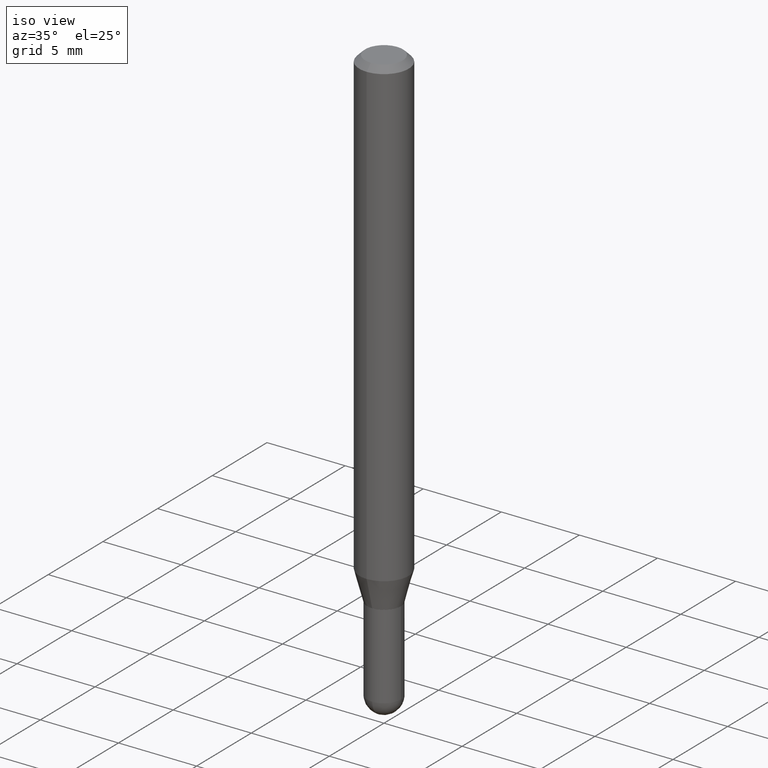
[diagram: clean part render]
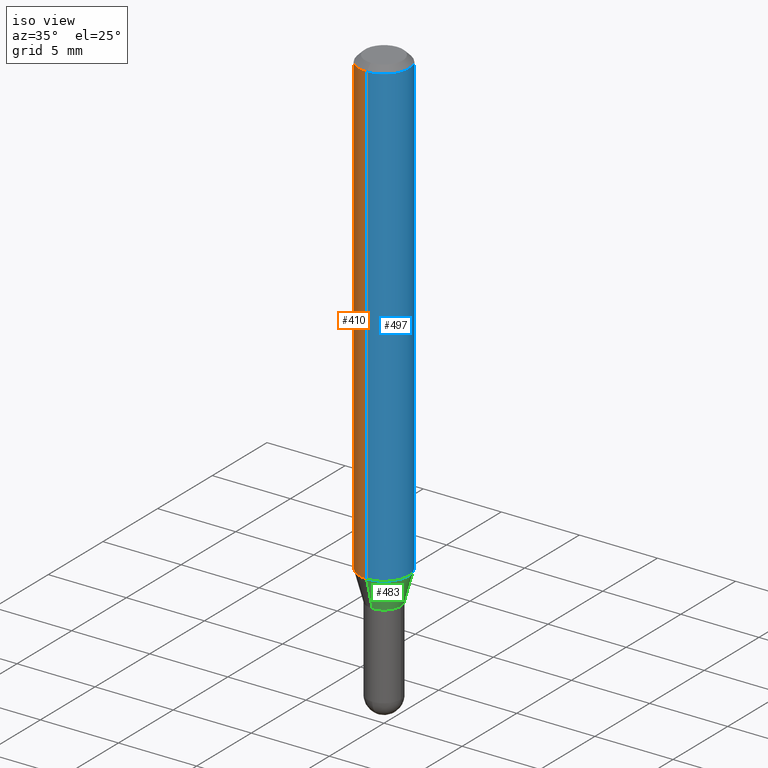
[diagram: same view with three faces highlighted in distinct colors, each labeled with its STEP entity id]
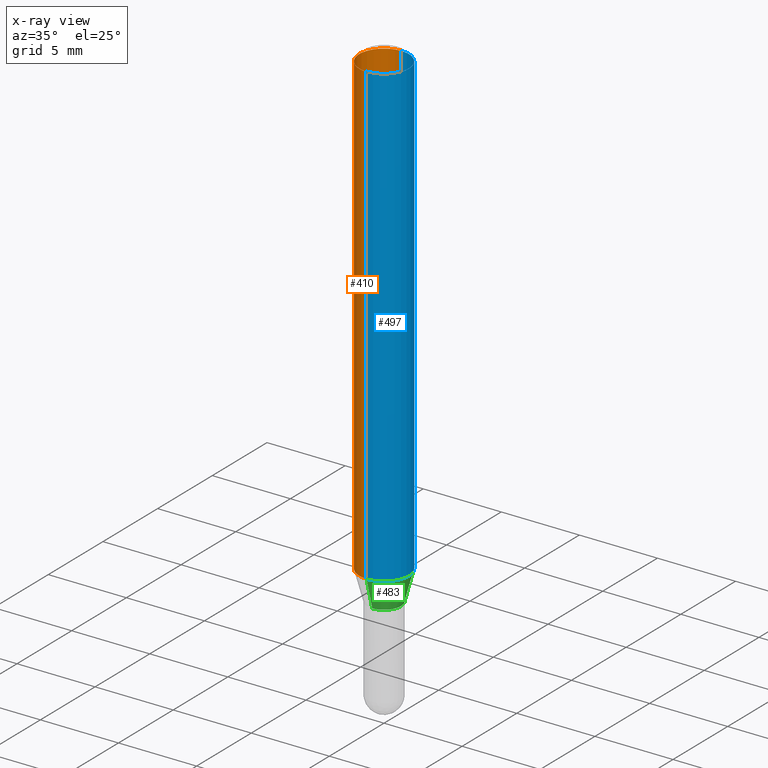
[diagram: x-ray of the same camera — body ghosted, the three highlighted faces saturated]
A machine part, iso view with three faces highlighted in distinct colors.
The next image is the same camera in x-ray (body ghosted, the three faces saturated) — at least one of them is partly hidden behind the body in this view.
Their STEP definitions:

[orange] entity #410 — the highlighted cylindrical surface (edge-blend (fillet) strip) has radius 1.5875 mm, axis along (-0, 0, 1).
#1 = ORIENTED_EDGE ( 'NONE', *, *, #155, .T. ) ;
#10 = CARTESIAN_POINT ( 'NONE',  ( 2.862182199487982773E-29, -4.086135022407415615E-15, -1.170358983848625023 ) ) ;
#26 = ORIENTED_EDGE ( 'NONE', *, *, #341, .T. ) ;
#89 = CARTESIAN_POINT ( 'NONE',  ( 4.440892098500625669E-16, 0.06250000000000000000, -2.182094916387593737E-16 ) ) ;
#90 = ORIENTED_EDGE ( 'NONE', *, *, #475, .F. ) ;
#94 = CIRCLE ( 'NONE', #489, 0.06250000000000000000 ) ;
#97 = DIRECTION ( 'NONE',  ( -2.445559216434552627E-29, 3.491351866220149979E-15, 1.000000000000000000 ) ) ;
#105 = DIRECTION ( 'NONE',  ( -6.982962677686265922E-15, -1.000000000000000000, 3.483106191921935554E-15 ) ) ;
#136 = DIRECTION ( 'NONE',  ( -2.445559216434552627E-29, 3.491351866220149979E-15, 1.000000000000000000 ) ) ;
#141 = FACE_OUTER_BOUND ( 'NONE', #195, .T. ) ;
#142 = CARTESIAN_POINT ( 'NONE',  ( -4.364351673553628267E-16, -0.06250000000000405231, -1.170358983848624801 ) ) ;
#147 = CARTESIAN_POINT ( 'NONE',  ( -4.364351673553916201E-16, -0.06250000000000000000, 2.182094916387593737E-16 ) ) ;
#153 = VERTEX_POINT ( 'NONE', #353 ) ;
#155 = EDGE_CURVE ( 'NONE', #153, #273, #94, .T. ) ;
#167 = CARTESIAN_POINT ( 'NONE',  ( 0.000000000000000000, 0.000000000000000000, 0.000000000000000000 ) ) ;
#181 = LINE ( 'NONE', #147, #277 ) ;
#195 = EDGE_LOOP ( 'NONE', ( #90, #1, #26, #406 ) ) ;
#207 = CIRCLE ( 'NONE', #263, 0.06250000000000000000 ) ;
#263 = AXIS2_PLACEMENT_3D ( 'NONE', #301, #343, #105 ) ;
#273 = VERTEX_POINT ( 'NONE', #142 ) ;
#277 = VECTOR ( 'NONE', #376, 39.37007874015748143 ) ;
#281 = VERTEX_POINT ( 'NONE', #309 ) ;
#301 = CARTESIAN_POINT ( 'NONE',  ( 3.668338824651831148E-31, -5.237027799330228519E-17, -0.01500000000000000812 ) ) ;
#304 = VECTOR ( 'NONE', #97, 39.37007874015748143 ) ;
#309 = CARTESIAN_POINT ( 'NONE',  ( -4.364351673553912750E-16, -0.06250000000000005551, -0.01499999999999979128 ) ) ;
#312 = VERTEX_POINT ( 'NONE', #313 ) ;
#313 = CARTESIAN_POINT ( 'NONE',  ( 4.440892098500914096E-16, 0.06249999999999995143, -0.01500000000000022669 ) ) ;
#341 = EDGE_CURVE ( 'NONE', #273, #281, #181, .T. ) ;
#343 = DIRECTION ( 'NONE',  ( -2.445559216434552627E-29, 3.491351866220149979E-15, 1.000000000000000000 ) ) ;
#346 = EDGE_CURVE ( 'NONE', #312, #281, #207, .T. ) ;
#353 = CARTESIAN_POINT ( 'NONE',  ( 4.440892098500914096E-16, 0.06249999999999594075, -1.170358983848625467 ) ) ;
#364 = DIRECTION ( 'NONE',  ( -6.982962677686265922E-15, -1.000000000000000000, 3.491351866220149979E-15 ) ) ;
#376 = DIRECTION ( 'NONE',  ( -2.445559216434552627E-29, 3.491351866220149979E-15, 1.000000000000000000 ) ) ;
#406 = ORIENTED_EDGE ( 'NONE', *, *, #346, .F. ) ;
#410 = ADVANCED_FACE ( 'NONE', ( #141 ), #480, .T. ) ;
#427 = AXIS2_PLACEMENT_3D ( 'NONE', #167, #136, #364 ) ;
#435 = DIRECTION ( 'NONE',  ( -6.982962677686265922E-15, -1.000000000000000000, 4.370956789862821150E-15 ) ) ;
#438 = LINE ( 'NONE', #89, #304 ) ;
#468 = DIRECTION ( 'NONE',  ( -2.445559216434552627E-29, 3.491351866220149979E-15, 1.000000000000000000 ) ) ;
#475 = EDGE_CURVE ( 'NONE', #153, #312, #438, .T. ) ;
#480 = CYLINDRICAL_SURFACE ( 'NONE', #427, 0.06250000000000000000 ) ;
#489 = AXIS2_PLACEMENT_3D ( 'NONE', #10, #468, #435 ) ;

[blue] entity #497 — the highlighted cylindrical surface (edge-blend (fillet) strip) has radius 1.5875 mm, axis along (-0, 0, 1).
#62 = DIRECTION ( 'NONE',  ( -2.445559216434552627E-29, 3.491351866220149979E-15, 1.000000000000000000 ) ) ;
#83 = ORIENTED_EDGE ( 'NONE', *, *, #341, .F. ) ;
#89 = CARTESIAN_POINT ( 'NONE',  ( 4.440892098500625669E-16, 0.06250000000000000000, -2.182094916387593737E-16 ) ) ;
#97 = DIRECTION ( 'NONE',  ( -2.445559216434552627E-29, 3.491351866220149979E-15, 1.000000000000000000 ) ) ;
#98 = CYLINDRICAL_SURFACE ( 'NONE', #362, 0.06250000000000000000 ) ;
#102 = AXIS2_PLACEMENT_3D ( 'NONE', #397, #62, #465 ) ;
#142 = CARTESIAN_POINT ( 'NONE',  ( -4.364351673553628267E-16, -0.06250000000000405231, -1.170358983848624801 ) ) ;
#147 = CARTESIAN_POINT ( 'NONE',  ( -4.364351673553916201E-16, -0.06250000000000000000, 2.182094916387593737E-16 ) ) ;
#149 = DIRECTION ( 'NONE',  ( -2.445559216434552627E-29, 3.491351866220149979E-15, 1.000000000000000000 ) ) ;
#153 = VERTEX_POINT ( 'NONE', #353 ) ;
#181 = LINE ( 'NONE', #147, #277 ) ;
#199 = ORIENTED_EDGE ( 'NONE', *, *, #302, .F. ) ;
#216 = EDGE_CURVE ( 'NONE', #273, #153, #373, .T. ) ;
#254 = CIRCLE ( 'NONE', #102, 0.06250000000000000000 ) ;
#269 = AXIS2_PLACEMENT_3D ( 'NONE', #384, #342, #460 ) ;
#273 = VERTEX_POINT ( 'NONE', #142 ) ;
#277 = VECTOR ( 'NONE', #376, 39.37007874015748143 ) ;
#281 = VERTEX_POINT ( 'NONE', #309 ) ;
#292 = FACE_OUTER_BOUND ( 'NONE', #431, .T. ) ;
#302 = EDGE_CURVE ( 'NONE', #281, #312, #254, .T. ) ;
#304 = VECTOR ( 'NONE', #97, 39.37007874015748143 ) ;
#309 = CARTESIAN_POINT ( 'NONE',  ( -4.364351673553912750E-16, -0.06250000000000005551, -0.01499999999999979128 ) ) ;
#312 = VERTEX_POINT ( 'NONE', #313 ) ;
#313 = CARTESIAN_POINT ( 'NONE',  ( 4.440892098500914096E-16, 0.06249999999999995143, -0.01500000000000022669 ) ) ;
#321 = ORIENTED_EDGE ( 'NONE', *, *, #475, .T. ) ;
#341 = EDGE_CURVE ( 'NONE', #273, #281, #181, .T. ) ;
#342 = DIRECTION ( 'NONE',  ( -2.445559216434552627E-29, 3.491351866220149979E-15, 1.000000000000000000 ) ) ;
#353 = CARTESIAN_POINT ( 'NONE',  ( 4.440892098500914096E-16, 0.06249999999999594075, -1.170358983848625467 ) ) ;
#362 = AXIS2_PLACEMENT_3D ( 'NONE', #491, #149, #382 ) ;
#373 = CIRCLE ( 'NONE', #269, 0.06250000000000000000 ) ;
#376 = DIRECTION ( 'NONE',  ( -2.445559216434552627E-29, 3.491351866220149979E-15, 1.000000000000000000 ) ) ;
#382 = DIRECTION ( 'NONE',  ( -6.982962677686265922E-15, -1.000000000000000000, 3.491351866220149979E-15 ) ) ;
#384 = CARTESIAN_POINT ( 'NONE',  ( 2.862182199487982773E-29, -4.086135022407415615E-15, -1.170358983848625023 ) ) ;
#397 = CARTESIAN_POINT ( 'NONE',  ( 3.668338824651831148E-31, -5.237027799330228519E-17, -0.01500000000000000812 ) ) ;
#431 = EDGE_LOOP ( 'NONE', ( #481, #321, #199, #83 ) ) ;
#438 = LINE ( 'NONE', #89, #304 ) ;
#460 = DIRECTION ( 'NONE',  ( -6.982962677686265922E-15, -1.000000000000000000, 4.370956789862821150E-15 ) ) ;
#465 = DIRECTION ( 'NONE',  ( -6.982962677686265922E-15, -1.000000000000000000, 3.483106191921935554E-15 ) ) ;
#475 = EDGE_CURVE ( 'NONE', #153, #312, #438, .T. ) ;
#481 = ORIENTED_EDGE ( 'NONE', *, *, #216, .T. ) ;
#491 = CARTESIAN_POINT ( 'NONE',  ( 0.000000000000000000, 0.000000000000000000, 0.000000000000000000 ) ) ;
#497 = ADVANCED_FACE ( 'NONE', ( #292 ), #98, .T. ) ;

[green] entity #483 — the highlighted conical surface has half-angle 15 deg.
#4 = EDGE_CURVE ( 'NONE', #124, #273, #386, .T. ) ;
#71 = CARTESIAN_POINT ( 'NONE',  ( -2.967759138016352935E-16, -0.04250000000000427047, -1.245000000000000329 ) ) ;
#81 = AXIS2_PLACEMENT_3D ( 'NONE', #407, #212, #444 ) ;
#100 = EDGE_CURVE ( 'NONE', #124, #250, #425, .T. ) ;
#123 = DIRECTION ( 'NONE',  ( -1.807323732225379049E-15, -0.2588190451025252359, 0.9659258262890670910 ) ) ;
#124 = VERTEX_POINT ( 'NONE', #198 ) ;
#126 = ORIENTED_EDGE ( 'NONE', *, *, #216, .F. ) ;
#137 = ORIENTED_EDGE ( 'NONE', *, *, #100, .T. ) ;
#142 = CARTESIAN_POINT ( 'NONE',  ( -4.364351673553628267E-16, -0.06250000000000405231, -1.170358983848624801 ) ) ;
#143 = ORIENTED_EDGE ( 'NONE', *, *, #4, .F. ) ;
#153 = VERTEX_POINT ( 'NONE', #353 ) ;
#198 = CARTESIAN_POINT ( 'NONE',  ( -2.967759138016352935E-16, -0.04250000000000427047, -1.245000000000000329 ) ) ;
#212 = DIRECTION ( 'NONE',  ( -2.445559216434552627E-29, 3.491351866220149979E-15, 1.000000000000000000 ) ) ;
#216 = EDGE_CURVE ( 'NONE', #273, #153, #373, .T. ) ;
#229 = CONICAL_SURFACE ( 'NONE', #81, 0.04249999999999991979, 0.2617993877991575125 ) ;
#234 = LINE ( 'NONE', #404, #388 ) ;
#239 = EDGE_LOOP ( 'NONE', ( #137, #401, #126, #143 ) ) ;
#249 = FACE_OUTER_BOUND ( 'NONE', #239, .T. ) ;
#250 = VERTEX_POINT ( 'NONE', #411 ) ;
#261 = VECTOR ( 'NONE', #123, 39.37007874015748854 ) ;
#269 = AXIS2_PLACEMENT_3D ( 'NONE', #384, #342, #460 ) ;
#273 = VERTEX_POINT ( 'NONE', #142 ) ;
#324 = CARTESIAN_POINT ( 'NONE',  ( 3.044721224461019599E-29, -4.346733073444088389E-15, -1.245000000000000551 ) ) ;
#327 = DIRECTION ( 'NONE',  ( -6.982962677686266711E-15, -1.000000000000000000, 6.427877632151220009E-15 ) ) ;
#342 = DIRECTION ( 'NONE',  ( -2.445559216434552627E-29, 3.491351866220149979E-15, 1.000000000000000000 ) ) ;
#353 = CARTESIAN_POINT ( 'NONE',  ( 4.440892098500914096E-16, 0.06249999999999594075, -1.170358983848625467 ) ) ;
#371 = DIRECTION ( 'NONE',  ( 1.839019923739649619E-15, 0.2588190451025318972, 0.9659258262890650926 ) ) ;
#373 = CIRCLE ( 'NONE', #269, 0.06250000000000000000 ) ;
#384 = CARTESIAN_POINT ( 'NONE',  ( 2.862182199487982773E-29, -4.086135022407415615E-15, -1.170358983848625023 ) ) ;
#386 = LINE ( 'NONE', #71, #261 ) ;
#388 = VECTOR ( 'NONE', #371, 39.37007874015748854 ) ;
#393 = EDGE_CURVE ( 'NONE', #250, #153, #234, .T. ) ;
#401 = ORIENTED_EDGE ( 'NONE', *, *, #393, .T. ) ;
#404 = CARTESIAN_POINT ( 'NONE',  ( 3.019806626980724295E-16, 0.04249999999999557604, -1.245000000000000773 ) ) ;
#407 = CARTESIAN_POINT ( 'NONE',  ( 3.044721224461019599E-29, -4.346733073444088389E-15, -1.245000000000000551 ) ) ;
#411 = CARTESIAN_POINT ( 'NONE',  ( 3.730349362740818209E-16, 0.04249999999999557604, -1.245000000000000773 ) ) ;
#425 = CIRCLE ( 'NONE', #504, 0.04249999999999991979 ) ;
#437 = DIRECTION ( 'NONE',  ( -2.445559216434552627E-29, 3.491351866220149979E-15, 1.000000000000000000 ) ) ;
#444 = DIRECTION ( 'NONE',  ( -6.982962677686266711E-15, -1.000000000000000000, 6.427877632151220009E-15 ) ) ;
#460 = DIRECTION ( 'NONE',  ( -6.982962677686265922E-15, -1.000000000000000000, 4.370956789862821150E-15 ) ) ;
#483 = ADVANCED_FACE ( 'NONE', ( #249 ), #229, .T. ) ;
#504 = AXIS2_PLACEMENT_3D ( 'NONE', #324, #437, #327 ) ;